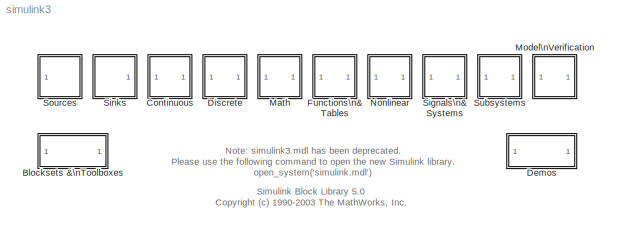
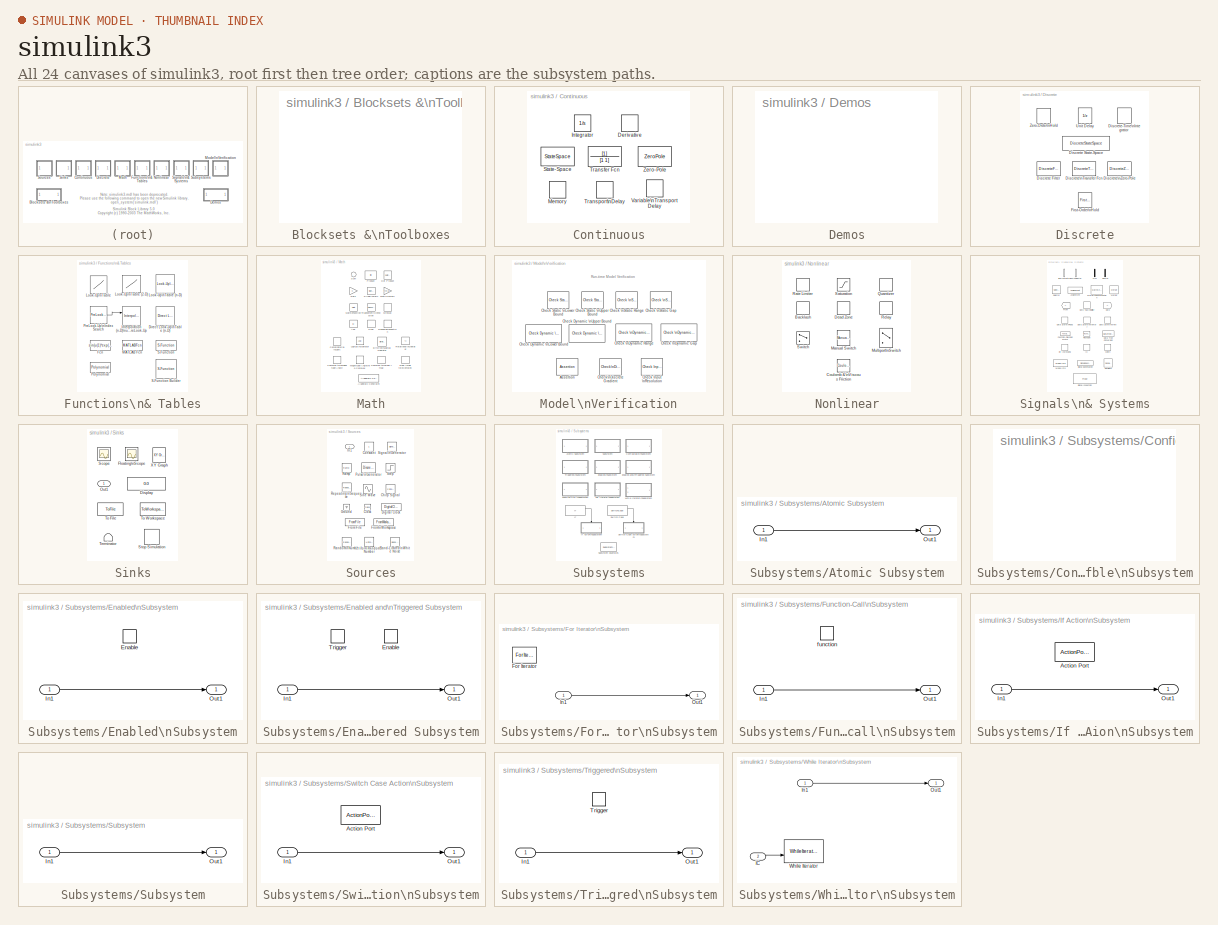
[diagram: thumbnail index - all 24 canvases of the model, root first then tree order]
MODEL simulink3
KIND library
CONFIG PostLoadFcn = setsysloc(bdroot)
BLOCK [SubSystem] Blocksets &\nToolboxes
  MaskDisplay = image(imread('blocksets.bmp','bmp'))
  MaskIconFrame = on
  MaskIconOpaque = on
  MaskIconRotate = none
  MaskIconUnits = autoscale
  OpenFcn = findblib
  Ports = []
  TreatAsAtomicUnit = off
BLOCK [SubSystem] Continuous
  MaskDisplay = image(imread('continuous.bmp','bmp'))
  MaskIconFrame = on
  MaskIconOpaque = on
  MaskIconRotate = none
  MaskIconUnits = autoscale
  Ports = []
  TreatAsAtomicUnit = off
BLOCK [Derivative] Continuous/Derivative
BLOCK [Integrator] Continuous/Integrator
  Ports = [1, 1]
BLOCK [Memory] Continuous/Memory
BLOCK [StateSpace] Continuous/State-Space
BLOCK [TransferFcn] Continuous/Transfer Fcn
  Denominator = [1 1]
BLOCK [TransportDelay] Continuous/Transport\nDelay
BLOCK [VariableTransportDelay] Continuous/Variable\nTransport Delay
  MaximumDelay = 10
BLOCK [ZeroPole] Continuous/Zero-Pole
  Poles = [0 -1]
BLOCK [SubSystem] Demos
  MaskDisplay = image(imread('demos.bmp','bmp'))
  MaskIconFrame = on
  MaskIconOpaque = on
  MaskIconRotate = none
  MaskIconUnits = autoscale
  OpenFcn = demo simulink
  Ports = []
  TreatAsAtomicUnit = off
BLOCK [SubSystem] Discrete
  MaskDisplay = image(imread('discrete.bmp','bmp'))
  MaskIconFrame = on
  MaskIconOpaque = on
  MaskIconRotate = none
  MaskIconUnits = autoscale
  Ports = []
  TreatAsAtomicUnit = off
BLOCK [DiscreteFilter] Discrete/Discrete Filter
  Denominator = [1 0.5]
BLOCK [DiscreteStateSpace] Discrete/Discrete State-Space
BLOCK [DiscreteIntegrator] Discrete/Discrete-Time\nIntegrator
  ExternalReset = none
  InitialConditionSource = internal
  IntegratorMethod = Forward Euler
  Ports = [1, 1]
BLOCK [DiscreteTransferFcn] Discrete/Discrete\nTransfer Fcn
BLOCK [DiscreteZeroPole] Discrete/Discrete\nZero-Pole
  Gain = 1
  Poles = [0 0.5]
BLOCK [Reference] Discrete/First-Order\nHold  REF=simulink/Discrete/First-Order\nHold
  Ports = [1, 1]
  SourceBlock = simulink/Discrete/First-Order\nHold
  SourceType = First-Order Hold
  Ts = 1
BLOCK [UnitDelay] Discrete/Unit Delay
BLOCK [ZeroOrderHold] Discrete/Zero-Order\nHold
BLOCK [SubSystem] Functions\n& Tables
  MaskDisplay = image(imread('functions.bmp','bmp'))
  MaskIconFrame = on
  MaskIconOpaque = on
  MaskIconRotate = none
  MaskIconUnits = autoscale
  MaskSelfModifiable = on
  Ports = []
  TreatAsAtomicUnit = off
BLOCK [Reference] Functions\n& Tables/Direct Look-Up\nTable (n-D)  REF=simulink/Look-Up\nTables/Direct Look-Up\nTable (n-D)
  Ports = [2, 1]
  SourceBlock = simulink/Look-Up\nTables/Direct Look-Up\nTable (n-D)
  SourceType = LookupNDDirect
  clipFlag = Warning
  explicitNumDims = 1
  maskTabDims = 2
  mxTable = [4 5 6;16 19 20;10 18 23]
  outDims = Element
  tabIsInput = off
BLOCK [Fcn] Functions\n& Tables/Fcn
  Expr = sin(u(1)*exp(2.3*(-u(2))))
BLOCK [Reference] Functions\n& Tables/Interpolation (n-D)\nusing PreLook-Up  REF=simulink/Look-Up\nTables/Interpolation (n-D)\nusing PreLook-Up
  Ports = [2, 1]
  SourceBlock = simulink/Look-Up\nTables/Interpolation (n-D)\nusing PreLook-Up
  SourceType = LookupNDInterpIdx
  explicitNumDims = 2
  extrapMethod = Linear
  interpMethod = Linear
  numDimsPopupSelect = 2
  rangeErrorMode = None
  table = sqrt([1:10]'*[1:10])
BLOCK [Lookup] Functions\n& Tables/Look-Up\nTable
  InputValues = [-5:5]
  OutputValues = tanh([-5:5])
BLOCK [Lookup2D] Functions\n& Tables/Look-Up\nTable (2-D)
  ColumnIndex = [1:3]
  OutputValues = [4 5 6;16 19 20;10 18 23]
  RowIndex = [1:3]
BLOCK [Reference] Functions\n& Tables/Look-Up\nTable (n-D)  REF=simulink/Look-Up\nTables/Look-Up\nTable (n-D)
  Ports = [2, 1]
  SourceBlock = simulink/Look-Up\nTables/Look-Up\nTable (n-D)
  SourceType = LookupNDInterp
  bp1 = [10,22,31]
  bp2 = [10,22,31]
  bp3 = [1:3]
  bp4 = [1:3]
  bpcell = { [1:3], [1:3] }
  cacheBpFlag = off
  explicitNumDims = 2
  extrapMethod = Linear
  interpMethod = Linear
  numDimsPopupSelect = 2
  rangeErrorMode = None
  searchMode = Binary Search
  tableData = [4 5 6;16 19 20;10 18 23]
  vectorInputFlag = off
BLOCK [MATLABFcn] Functions\n& Tables/MATLAB Fcn
BLOCK [Reference] Functions\n& Tables/Polynomial  REF=simulink/Math\nOperations/Polynomial
  Ports = [1, 1]
  SourceBlock = simulink/Math\nOperations/Polynomial
  SourceType = Polyval
  coefs = [ +2.081618890e-019, -1.441693666e-014, +4.719686976e-010, -8.536869453e-006, +1.621573104e-001, -8.087801117e+001 ]
BLOCK [Reference] Functions\n& Tables/PreLook-Up\nIndex Search  REF=simulink/Look-Up\nTables/PreLook-Up\nIndex Search
  Ports = [1, 1]
  SourceBlock = simulink/Look-Up\nTables/PreLook-Up\nIndex Search
  SourceType = LookupIdxSearch
  bpData = [10:10:100]
  cacheBpFlag = off
  extrapMode = Linear Extrapolation
  outputFlag = off
  rangeErrorMode = None
  searchMode = Binary Search
BLOCK [S-Function] Functions\n& Tables/S-Function
  Ports = [1, 1]
BLOCK [S-Function] Functions\n& Tables/S-Function Builder
  CopyFcn = set_param(gcb,'LinkStatus','none')
  MaskDisplay = plot(val(:,1),val(:,2))\ndisp(sys)
  MaskIconFrame = on
  MaskIconOpaque = on
  MaskIconRotate = none
  MaskIconUnits = normalized
  MaskInitialization = val = [[.9  0.75 0.75 1 1 .9 .9 1]',[1 1 0.75 0.75 .9 .9 1 .9]'];\nsys = get_param(gcb,'FunctionName');
  MaskType = S-Function Builder
  OpenFcn = sfunctionwizard(gcbh)
  Ports = [1, 1]
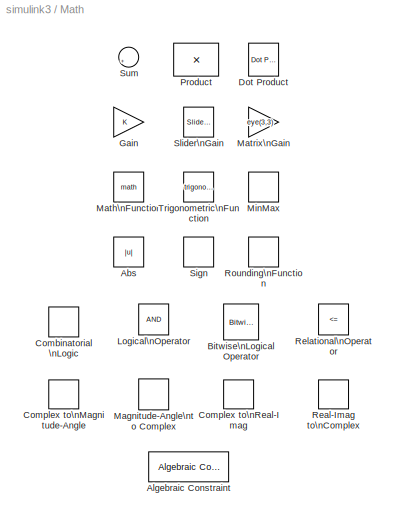
BLOCK [SubSystem] Math
  MaskDisplay = image(imread('math.bmp','bmp'))
  MaskIconFrame = on
  MaskIconOpaque = on
  MaskIconRotate = none
  MaskIconUnits = autoscale
  MaskSelfModifiable = on
  Ports = []
  TreatAsAtomicUnit = off
BLOCK [Abs] Math/Abs
BLOCK [Reference] Math/Algebraic Constraint  REF=simulink/Math\nOperations/Algebraic Constraint
  Ports = [1, 1]
  SourceBlock = simulink/Math\nOperations/Algebraic Constraint
  SourceType = Algebraic Constraint
  z0 = 0
BLOCK [Reference] Math/Bitwise\nLogical Operator  REF=simulink/Logic and Bit\nOperations/Bitwise\nLogical Operator
  Operand2 = 'FFFF'
  Operator = AND
  Ports = [1, 1]
  SourceBlock = simulink/Logic and Bit\nOperations/Bitwise\nLogical Operator
  SourceType = BitwiseOperator
BLOCK [CombinatorialLogic] Math/Combinatorial \nLogic
BLOCK [ComplexToMagnitudeAngle] Math/Complex to\nMagnitude-Angle
  Output = Magnitude and angle
  Ports = [1, 2]
BLOCK [ComplexToRealImag] Math/Complex to\nReal-Imag
  Output = Real and imag
  Ports = [1, 2]
BLOCK [Reference] Math/Dot Product  REF=simulink/Math\nOperations/Dot Product
  DoSatur = off
  InputSameDT = off
  LockScale = off
  OutDataType = sfix(16)
  OutScaling = 2^-10
  OutputDataTypeScalingMode = Inherit via internal rule
  Ports = [2, 1]
  RndMeth = Floor
  SourceBlock = simulink/Math\nOperations/Dot Product
  SourceType = Dot Product
BLOCK [Gain] Math/Gain
BLOCK [Logic] Math/Logical\nOperator
  Ports = [2, 1]
BLOCK [MagnitudeAngleToComplex] Math/Magnitude-Angle\nto Complex
  Input = Magnitude and angle
  Ports = [2, 1]
BLOCK [Math] Math/Math\nFunction
  Ports = [1, 1]
BLOCK [Gain] Math/Matrix\nGain
  Gain = eye(3,3)
  Multiplication = Matrix(K*u)
BLOCK [MinMax] Math/MinMax
  Function = min
  Ports = [1, 1]
BLOCK [Product] Math/Product
  Ports = [2, 1]
  RndMeth = Floor
BLOCK [RealImagToComplex] Math/Real-Imag to\nComplex
  Input = Real and imag
  Ports = [2, 1]
BLOCK [RelationalOperator] Math/Relational\nOperator
  Operator = <=
BLOCK [Rounding] Math/Rounding\nFunction
BLOCK [Signum] Math/Sign
BLOCK [Reference] Math/Slider\nGain  REF=simulink/Math\nOperations/Slider\nGain
  Ports = [1, 1]
  SourceBlock = simulink/Math\nOperations/Slider\nGain
  SourceType = Slider Gain
  gain = 1
  high = 2
  low = 0
BLOCK [Sum] Math/Sum
  CopyFcn = set_param(gcbh,'ShowName','off','CopyFcn','')
  IconShape = round
  Inputs = |++
  Ports = [2, 1]
BLOCK [Trigonometry] Math/Trigonometric\nFunction
  Ports = [1, 1]
BLOCK [SubSystem] Model\nVerification
  MaskDisplay = image(imread('assertion.bmp','bmp'))
  MaskIconFrame = on
  MaskIconOpaque = on
  MaskIconRotate = none
  MaskIconUnits = autoscale
  Ports = []
  TreatAsAtomicUnit = off
BLOCK [Assertion] Model\nVerification/Assertion
BLOCK [Reference] Model\nVerification/Check Dynamic \nLower Bound  REF=simulink/Model\nVerification/Check Dynamic \nLower Bound
  Description = min < sig
  Enabled = on
  Ports = [2]
  SourceBlock = simulink/Model\nVerification/Check Dynamic \nLower Bound
  SourceType = Checks_DMin
  export = off
  icon = graphic
  stopWhenAssertionFail = on
BLOCK [Reference] Model\nVerification/Check Dynamic \nUpper Bound  REF=simulink/Model\nVerification/Check Dynamic \nUpper Bound
  Description = sig < max
  Ports = [2]
  SourceBlock = simulink/Model\nVerification/Check Dynamic \nUpper Bound
  SourceType = Checks_DMax
  enabled = on
  export = off
  icon = graphic
  stopWhenAssertionFail = on
BLOCK [Reference] Model\nVerification/Check Input \nResolution  REF=simulink/Model\nVerification/Check Input \nResolution
  Description = -Inf < u < +Inf
  Ports = [1]
  SourceBlock = simulink/Model\nVerification/Check Input \nResolution
  SourceType = Checks_Resolution
  enabled = on
  export = off
  resolution = 1
  stopWhenAssertionFail = on
BLOCK [Reference] Model\nVerification/Check Static \nLower Bound  REF=simulink/Model\nVerification/Check Static \nLower Bound
  Description = 0 <= u
  Ports = [1]
  SourceBlock = simulink/Model\nVerification/Check Static \nLower Bound
  SourceType = Checks_SMin
  enabled = on
  export = off
  icon = graphic
  min = 0
  min_included = on
  stopWhenAssertionFail = on
BLOCK [Reference] Model\nVerification/Check Static \nUpper Bound  REF=simulink/Model\nVerification/Check Static \nUpper Bound
  Description = u <= 0
  Ports = [1]
  SourceBlock = simulink/Model\nVerification/Check Static \nUpper Bound
  SourceType = Checks_SMax
  enabled = on
  export = off
  icon = graphic
  max = 0
  max_included = on
  stopWhenAssertionFail = on
BLOCK [Reference] Model\nVerification/Check \nDynamic Gap  REF=simulink/Model\nVerification/Check \nDynamic Gap
  Description = sig < min || max < sig
  Ports = [3]
  SourceBlock = simulink/Model\nVerification/Check \nDynamic Gap
  SourceType = Checks_DGap
  enabled = on
  export = off
  icon = graphic
  stopWhenAssertionFail = on
BLOCK [Reference] Model\nVerification/Check \nDynamic Range  REF=simulink/Model\nVerification/Check \nDynamic Range
  Description = min < sig < max
  Ports = [3]
  SourceBlock = simulink/Model\nVerification/Check \nDynamic Range
  SourceType = Checks_DRange
  enabled = on
  export = off
  icon = graphic
  stopWhenAssertionFail = on
BLOCK [Reference] Model\nVerification/Check \nStatic Gap  REF=simulink/Model\nVerification/Check \nStatic Gap
  Description = u <= 0 || 100 <= u
  Ports = [1]
  SourceBlock = simulink/Model\nVerification/Check \nStatic Gap
  SourceType = Checks_SGap
  enabled = on
  export = off
  icon = graphic
  max = 100
  max_included = on
  min = 0
  min_included = on
  stopWhenAssertionFail = on
BLOCK [Reference] Model\nVerification/Check \nStatic Range  REF=simulink/Model\nVerification/Check \nStatic Range
  Description = 0 <= u <= 100
  Ports = [1]
  SourceBlock = simulink/Model\nVerification/Check \nStatic Range
  SourceType = Checks_SRange
  enabled = on
  export = off
  icon = graphic
  max = 100
  max_included = on
  min = 0
  min_included = on
  stopWhenAssertionFail = on
BLOCK [Reference] Model\nVerification/Check\nDiscrete Gradient  REF=simulink/Model\nVerification/Check\nDiscrete Gradient
  Description = | du / dt | < 1
  Ports = [1]
  SourceBlock = simulink/Model\nVerification/Check\nDiscrete Gradient
  SourceType = Checks_Gradient
  enabled = on
  export = off
  gradient = 1
  icon = graphic
  stopWhenAssertionFail = on
BLOCK [SubSystem] Nonlinear
  MaskDisplay = image(imread('nonlinear.bmp','bmp'))
  MaskIconFrame = on
  MaskIconOpaque = on
  MaskIconRotate = none
  MaskIconUnits = autoscale
  MaskSelfModifiable = on
  Ports = []
  TreatAsAtomicUnit = off
BLOCK [Backlash] Nonlinear/Backlash
BLOCK [Reference] Nonlinear/Coulomb &\nViscous Friction  REF=simulink/Discontinuities/Coulomb &\nViscous Friction
  Ports = [1, 1]
  SourceBlock = simulink/Discontinuities/Coulomb &\nViscous Friction
  SourceType = Coulombic and Viscous Friction
  gain = 1
  offset = [1 3 2 0]
BLOCK [DeadZone] Nonlinear/Dead Zone
BLOCK [Reference] Nonlinear/Manual Switch  REF=simulink/Signal\nRouting/Manual Switch
  Ports = [2, 1]
  SourceBlock = simulink/Signal\nRouting/Manual Switch
  SourceType = Manual Switch
  action = 0
  sw = 1
BLOCK [MultiPortSwitch] Nonlinear/Multiport\nSwitch
  Inputs = 3
  Ports = [4, 1]
  SaturateOnIntegerOverflow = off
BLOCK [Quantizer] Nonlinear/Quantizer
BLOCK [RateLimiter] Nonlinear/Rate Limiter
BLOCK [Relay] Nonlinear/Relay
BLOCK [Saturate] Nonlinear/Saturation
BLOCK [Switch] Nonlinear/Switch
  SaturateOnIntegerOverflow = off
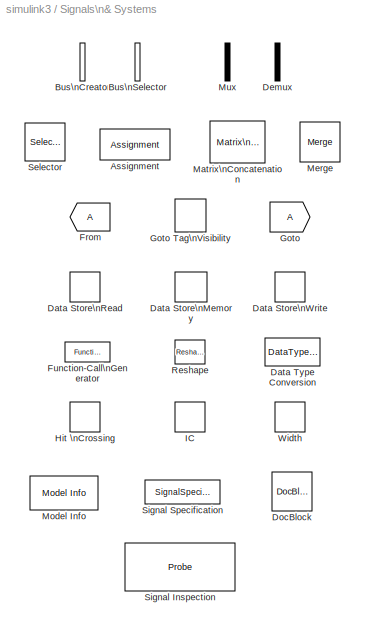
BLOCK [SubSystem] Signals\n& Systems
  MaskDisplay = image(imread('signals.bmp','bmp'))
  MaskIconFrame = on
  MaskIconOpaque = on
  MaskIconRotate = none
  MaskIconUnits = autoscale
  MaskSelfModifiable = on
  Ports = []
  TreatAsAtomicUnit = on
BLOCK [Assignment] Signals\n& Systems/Assignment
  Ports = [2, 1]
BLOCK [BusCreator] Signals\n& Systems/Bus\nCreator
  CopyFcn = set_param(gcbh,'ShowName','off','CopyFcn','')
  DisplayOption = bar
  Inputs = 2
  Ports = [2, 1]
BLOCK [BusSelector] Signals\n& Systems/Bus\nSelector
  CopyFcn = set_param(gcbh,'ShowName','off','CopyFcn','')
  OutputSignals = signal1,signal2
  Ports = [1, 2]
BLOCK [DataStoreMemory] Signals\n& Systems/Data Store\nMemory
  DataStoreName = A
  InitialValue = 0
  RTWStateStorageClass = Auto
  ShowAdditionalParam = off
  VectorParams1D = on
BLOCK [DataStoreRead] Signals\n& Systems/Data Store\nRead
  DataStoreName = A
  SampleTime = 0
BLOCK [DataStoreWrite] Signals\n& Systems/Data Store\nWrite
  DataStoreName = A
  SampleTime = -1
BLOCK [DataTypeConversion] Signals\n& Systems/Data Type Conversion
BLOCK [Demux] Signals\n& Systems/Demux
  CopyFcn = set_param(gcbh,'ShowName','off','CopyFcn','')
  DisplayOption = bar
  Outputs = 2
  Ports = [1, 2]
BLOCK [Reference] Signals\n& Systems/DocBlock  REF=simulink/Model-Wide\nUtilities/DocBlock
  DocumentType = Text
  Ports = []
  ShowPortLabels = on
  SourceBlock = simulink/Model-Wide\nUtilities/DocBlock
  SourceType = DocBlock
BLOCK [From] Signals\n& Systems/From
  GotoTag = A
BLOCK [Reference] Signals\n& Systems/Function-Call\nGenerator  REF=simulink/Ports &\nSubsystems/Function-Call\nGenerator
  Ports = [0, 1]
  SourceBlock = simulink/Ports &\nSubsystems/Function-Call\nGenerator
  SourceType = Function-Call Generator
  numberOfIterations = 1
  sample_time = 1
BLOCK [Goto] Signals\n& Systems/Goto
  GotoTag = A
  TagVisibility = local
BLOCK [GotoTagVisibility] Signals\n& Systems/Goto Tag\nVisibility
BLOCK [HitCross] Signals\n& Systems/Hit \nCrossing
  HitCrossingDirection = either
  Ports = [1, 1]
BLOCK [InitialCondition] Signals\n& Systems/IC
BLOCK [Reference] Signals\n& Systems/Matrix\nConcatenation  REF=simulink/Math\nOperations/Matrix\nConcatenation
  Ports = [2, 1]
  SourceBlock = simulink/Math\nOperations/Matrix\nConcatenation
  SourceType = Matrix Concatenation
  catMethod = Horizontal
  numInports = 2
BLOCK [Merge] Signals\n& Systems/Merge
  Ports = [2, 1]
BLOCK [Reference] Signals\n& Systems/Model Info  REF=simulink/Model-Wide\nUtilities/Model Info
  BlockCM = none
  DisplayStringWithTags = Model Info
  Frame = on
  HorizontalTextAlignment = Center
  InitialBlockCM = none
  LeftAlignmentValue = 0.5
  MaskDisplayString = Model Info
  Ports = []
  ShowPortLabels = on
  SourceBlock = simulink/Model-Wide\nUtilities/Model Info
  SourceBlockDiagram = simulink3
  SourceType = CMBlock
  TagMaxNumber = 20
BLOCK [Mux] Signals\n& Systems/Mux
  CopyFcn = set_param(gcbh,'ShowName','off','CopyFcn','')
  DisplayOption = bar
  Inputs = 2
  Ports = [2, 1]
BLOCK [Reference] Signals\n& Systems/Reshape  REF=simulink/Math\nOperations/Reshape
  OutputDimensionality = 1-D array
  OutputDimensions = [1,1]
  Ports = [1, 1]
  SourceBlock = simulink/Math\nOperations/Reshape
  SourceType = Reshape
BLOCK [Selector] Signals\n& Systems/Selector
  Elements = [1 3]
  InputPortWidth = 3
  Ports = [1, 1]
BLOCK [Probe] Signals\n& Systems/Signal Inspection
  Ports = [1, 4]
  ProbeSignalDimensions = on
BLOCK [SignalSpecification] Signals\n& Systems/Signal Specification
BLOCK [Width] Signals\n& Systems/Width
BLOCK [SubSystem] Sinks
  MaskDisplay = image(imread('sinks.bmp','bmp'))\n
  MaskIconFrame = on
  MaskIconOpaque = on
  MaskIconRotate = none
  MaskIconUnits = autoscale
  MaskSelfModifiable = on
  Ports = [0, 1]
  TreatAsAtomicUnit = off
BLOCK [Display] Sinks/Display
  Decimation = 1
  Ports = [1]
BLOCK [Scope] Sinks/Floating\nScope
  DataFormat = StructureWithTime
  Floating = on
  NumInputPorts = 1
  Ports = []
  SaveName = ScopeData1
BLOCK [Outport] Sinks/Out1
  IconDisplay = Port number
BLOCK [Scope] Sinks/Scope
  DataFormat = StructureWithTime
  NumInputPorts = 1
  Ports = [1]
BLOCK [Stop] Sinks/Stop Simulation
BLOCK [Terminator] Sinks/Terminator
BLOCK [ToFile] Sinks/To File
BLOCK [ToWorkspace] Sinks/To Workspace
  MaxDataPoints = inf
  SampleTime = -1
  SaveFormat = Structure
  VariableName = simout
BLOCK [Reference] Sinks/XY Graph  REF=simulink/Sinks/XY Graph
  Ports = [2]
  SourceBlock = simulink/Sinks/XY Graph
  SourceType = XY scope.
  st = -1
  xmax = 1
  xmin = -1
  ymax = 1
  ymin = -1
BLOCK [SubSystem] Sources
  MaskDisplay = image(imread('sources.bmp','bmp'))
  MaskIconFrame = on
  MaskIconOpaque = on
  MaskIconRotate = none
  MaskIconUnits = autoscale
  Ports = [1]
  TreatAsAtomicUnit = off
BLOCK [Reference] Sources/Band-Limited\nWhite Noise  REF=simulink/Sources/Band-Limited\nWhite Noise
  Cov = [0.1]
  Ports = [0, 1]
  SourceBlock = simulink/Sources/Band-Limited\nWhite Noise
  SourceType = Continuous White Noise.
  Ts = 0.1
  VectorParams1D = on
  seed = [23341]
BLOCK [Reference] Sources/Chirp Signal  REF=simulink/Sources/Chirp Signal
  Ports = [0, 1]
  SourceBlock = simulink/Sources/Chirp Signal
  SourceType = chirp
  T = 100
  VectorParams1D = on
  f1 = 0.1
  f2 = 1
BLOCK [Clock] Sources/Clock
  Decimation = 10
BLOCK [Constant] Sources/Constant
BLOCK [DigitalClock] Sources/Digital Clock
BLOCK [FromFile] Sources/From File
  SampleTime = 0
BLOCK [FromWorkspace] Sources/From\nWorkspace
  SampleTime = 0
  VariableName = simin
BLOCK [Ground] Sources/Ground
BLOCK [Inport] Sources/In1
  IconDisplay = Port number
BLOCK [DiscretePulseGenerator] Sources/Pulse\nGenerator
  Ports = [0, 1]
  PulseType = Time based
  PulseWidth = 50
BLOCK [Reference] Sources/Ramp  REF=simulink/Sources/Ramp
  Ports = [0, 1]
  SourceBlock = simulink/Sources/Ramp
  SourceType = Ramp
  VectorParams1D = on
  X0 = 0
  slope = 1
  start = 0
BLOCK [RandomNumber] Sources/Random\nNumber
  SampleTime = 0
BLOCK [Reference] Sources/Repeating\nSequence  REF=simulink/Sources/Repeating\nSequence
  Ports = [0, 1]
  SourceBlock = simulink/Sources/Repeating\nSequence
  SourceType = Repeating table
  rep_seq_t = [0 2]
  rep_seq_y = [0 2]
BLOCK [SignalGenerator] Sources/Signal\nGenerator
  Ports = [0, 1]
BLOCK [Sin] Sources/Sine Wave
  Ports = [0, 1]
  SampleTime = 0
  SineType = Time based
BLOCK [Step] Sources/Step
  SampleTime = 0
BLOCK [UniformRandomNumber] Sources/Uniform Random\nNumber
  SampleTime = 0
BLOCK [SubSystem] Subsystems
  MaskDisplay = image(imread('subsystems.bmp','bmp'))
  MaskIconFrame = on
  MaskIconOpaque = on
  MaskIconRotate = none
  MaskIconUnits = autoscale
  MaskSelfModifiable = on
  Ports = []
  TreatAsAtomicUnit = on
BLOCK [SubSystem] Subsystems/Atomic Subsystem
  CopyFcn = set_param(gcb,'LinkStatus','none'); set_param(gcb,'Mask','off'); set_param(gcb,'MaskType',''); set_param(gcb,'MaskDescription',''); set_param(gcb,'OpenFcn',''); set_param(gcb,'CopyFcn','')
  MaskDescription = A subsystem block template containing an inport and outport block.
  MaskIconFrame = on
  MaskIconOpaque = on
  MaskIconRotate = none
  MaskIconUnits = autoscale
  MaskType = Atomic Subsystem
  OpenFcn = open_system(gcb,'force')
  Ports = [1, 1]
  TreatAsAtomicUnit = on
BLOCK [Inport] Subsystems/Atomic Subsystem/In1
  IconDisplay = Port number
BLOCK [Outport] Subsystems/Atomic Subsystem/Out1
  IconDisplay = Port number
BLOCK [SubSystem] Subsystems/Configurable\nSubsystem
  Ports = []
  TemplateBlock = master
  TreatAsAtomicUnit = off
BLOCK [SubSystem] Subsystems/Enabled and\nTriggered Subsystem
  CopyFcn = set_param(gcb,'LinkStatus','none'); set_param(gcb,'Mask','off'); set_param(gcb,'MaskType',''); set_param(gcb,'MaskDescription',''); set_param(gcb,'OpenFcn',''); set_param(gcb,'CopyFcn','')
  MaskDescription = A subsystem block template containing an enable port, trigger port, inport and outport block.
  MaskIconFrame = on
  MaskIconOpaque = on
  MaskIconRotate = none
  MaskIconUnits = autoscale
  MaskType = Enabled And Triggered Subsystem
  OpenFcn = open_system(gcb,'force')
  Ports = [1, 1, 1, 1]
  TreatAsAtomicUnit = on
BLOCK [EnablePort] Subsystems/Enabled and\nTriggered Subsystem/Enable
  Ports = []
BLOCK [Inport] Subsystems/Enabled and\nTriggered Subsystem/In1
  IconDisplay = Port number
BLOCK [Outport] Subsystems/Enabled and\nTriggered Subsystem/Out1
  IconDisplay = Port number
BLOCK [TriggerPort] Subsystems/Enabled and\nTriggered Subsystem/Trigger
  Ports = []
BLOCK [SubSystem] Subsystems/Enabled\nSubsystem
  CopyFcn = set_param(gcb,'LinkStatus','none'); set_param(gcb,'Mask','off'); set_param(gcb,'MaskType',''); set_param(gcb,'MaskDescription',''); set_param(gcb,'OpenFcn',''); set_param(gcb,'CopyFcn','')
  MaskDescription = A subsystem block template containing an enable port, inport and outport block.
  MaskIconFrame = on
  MaskIconOpaque = on
  MaskIconRotate = none
  MaskIconUnits = autoscale
  MaskType = Enabled Subsystem
  OpenFcn = open_system(gcb,'force')
  Ports = [1, 1, 1]
  TreatAsAtomicUnit = on
BLOCK [EnablePort] Subsystems/Enabled\nSubsystem/Enable
  Ports = []
BLOCK [Inport] Subsystems/Enabled\nSubsystem/In1
  IconDisplay = Port number
BLOCK [Outport] Subsystems/Enabled\nSubsystem/Out1
  IconDisplay = Port number
BLOCK [SubSystem] Subsystems/For Iterator\nSubsystem
  CopyFcn = set_param(gcb,'LinkStatus','none'); set_param(gcb,'Mask','off'); set_param(gcb,'MaskType',''); set_param(gcb,'MaskDescription',''); set_param(gcb,'OpenFcn',''); set_param(gcb,'CopyFcn','')
  MaskDescription = A subsystem block template containing a for iterator, inport and outport block.
  MaskIconFrame = on
  MaskIconOpaque = on
  MaskIconRotate = none
  MaskIconUnits = autoscale
  MaskType = For Iterator Subsystem
  OpenFcn = open_system(gcb,'force')
  Ports = [1, 1]
  TreatAsAtomicUnit = on
BLOCK [ForIterator] Subsystems/For Iterator\nSubsystem/For Iterator
  Ports = [0, 1]
BLOCK [Inport] Subsystems/For Iterator\nSubsystem/In1
  IconDisplay = Port number
BLOCK [Outport] Subsystems/For Iterator\nSubsystem/Out1
  IconDisplay = Port number
BLOCK [SubSystem] Subsystems/Function-Call\nSubsystem
  CopyFcn = set_param(gcb,'LinkStatus','none'); set_param(gcb,'Mask','off'); set_param(gcb,'MaskType',''); set_param(gcb,'MaskDescription',''); set_param(gcb,'OpenFcn',''); set_param(gcb,'CopyFcn','')
  MaskDescription = A subsystem block template containing a function-call trigger port, inport and outport block.
  MaskIconFrame = on
  MaskIconOpaque = on
  MaskIconRotate = none
  MaskIconUnits = autoscale
  MaskType = Function-Call Subsystem
  OpenFcn = open_system(gcb,'force')
  Ports = [1, 1, 0, 1]
  TreatAsAtomicUnit = on
BLOCK [Inport] Subsystems/Function-Call\nSubsystem/In1
  IconDisplay = Port number
BLOCK [Outport] Subsystems/Function-Call\nSubsystem/Out1
  IconDisplay = Port number
BLOCK [TriggerPort] Subsystems/Function-Call\nSubsystem/function
  Ports = []
  TriggerType = function-call
BLOCK [If] Subsystems/If
  Ports = [1, 2]
BLOCK [SubSystem] Subsystems/If Action\nSubsystem
  CopyFcn = set_param(gcb,'LinkStatus','none'); set_param(gcb,'Mask','off'); set_param(gcb,'MaskType',''); set_param(gcb,'MaskDescription',''); set_param(gcb,'OpenFcn',''); set_param(gcb,'CopyFcn','')
  MaskDescription = A subsystem block template containing an action port, inport and outport block.
  MaskIconFrame = on
  MaskIconOpaque = on
  MaskIconRotate = none
  MaskIconUnits = autoscale
  MaskType = If Action Subsystem
  OpenFcn = open_system(gcb,'force')
  Ports = [1, 1, 0, 0, 0, 0, 0, 1]
  TreatAsAtomicUnit = on
BLOCK [ActionPort] Subsystems/If Action\nSubsystem/Action Port
  ActionType = then
BLOCK [Inport] Subsystems/If Action\nSubsystem/In1
  IconDisplay = Port number
BLOCK [Outport] Subsystems/If Action\nSubsystem/Out1
  IconDisplay = Port number
BLOCK [SubSystem] Subsystems/Subsystem
  CopyFcn = set_param(gcb,'LinkStatus','none'); set_param(gcb,'Mask','off'); set_param(gcb,'MaskType',''); set_param(gcb,'MaskDescription',''); set_param(gcb,'OpenFcn',''); set_param(gcb,'CopyFcn','')
  MaskDescription = A subsystem block template containing an inport and outport block.
  MaskIconFrame = on
  MaskIconOpaque = on
  MaskIconRotate = none
  MaskIconUnits = autoscale
  MaskType = Virtual Subsystem
  OpenFcn = open_system(gcb,'force')
  Ports = [1, 1]
  TreatAsAtomicUnit = off
BLOCK [Reference] Subsystems/Subsystem Examples  REF=simulink/Ports &\nSubsystems/Subsystem Examples
  Ports = []
  ShowPortLabels = on
  SourceBlock = simulink/Ports &\nSubsystems/Subsystem Examples
  SourceType = Subsystem Examples
BLOCK [Inport] Subsystems/Subsystem/In1
  IconDisplay = Port number
BLOCK [Outport] Subsystems/Subsystem/Out1
  IconDisplay = Port number
BLOCK [SwitchCase] Subsystems/Switch Case
  Ports = [1, 2]
BLOCK [SubSystem] Subsystems/Switch Case Action\nSubsystem
  CopyFcn = set_param(gcb,'LinkStatus','none'); set_param(gcb,'Mask','off'); set_param(gcb,'MaskType',''); set_param(gcb,'MaskDescription',''); set_param(gcb,'OpenFcn',''); set_param(gcb,'CopyFcn','')
  MaskDescription = A subsystem block template containing an action port, inport and outport block.
  MaskIconFrame = on
  MaskIconOpaque = on
  MaskIconRotate = none
  MaskIconUnits = autoscale
  MaskType = Switch Case Action Subsystem
  OpenFcn = open_system(gcb,'force')
  Ports = [1, 1, 0, 0, 0, 0, 0, 1]
  TreatAsAtomicUnit = on
BLOCK [ActionPort] Subsystems/Switch Case Action\nSubsystem/Action Port
  ActionType = case
BLOCK [Inport] Subsystems/Switch Case Action\nSubsystem/In1
  IconDisplay = Port number
BLOCK [Outport] Subsystems/Switch Case Action\nSubsystem/Out1
  IconDisplay = Port number
BLOCK [SubSystem] Subsystems/Triggered\nSubsystem
  CopyFcn = set_param(gcb,'LinkStatus','none'); set_param(gcb,'Mask','off'); set_param(gcb,'MaskType',''); set_param(gcb,'MaskDescription',''); set_param(gcb,'OpenFcn',''); set_param(gcb,'CopyFcn','')
  MaskDescription = A subsystem block template containing a trigger port, inport and outport block.
  MaskIconFrame = on
  MaskIconOpaque = on
  MaskIconRotate = none
  MaskIconUnits = autoscale
  MaskType = Triggered Subsystem
  OpenFcn = open_system(gcb,'force')
  Ports = [1, 1, 0, 1]
  TreatAsAtomicUnit = on
BLOCK [Inport] Subsystems/Triggered\nSubsystem/In1
  IconDisplay = Port number
BLOCK [Outport] Subsystems/Triggered\nSubsystem/Out1
  IconDisplay = Port number
BLOCK [TriggerPort] Subsystems/Triggered\nSubsystem/Trigger
  Ports = []
BLOCK [SubSystem] Subsystems/While Iterator\nSubsystem
  CopyFcn = set_param(gcb,'LinkStatus','none'); set_param(gcb,'Mask','off'); set_param(gcb,'MaskType',''); set_param(gcb,'MaskDescription',''); set_param(gcb,'OpenFcn',''); set_param(gcb,'CopyFcn','')
  MaskDescription = A subsystem block template containing a while iterator, inport and outport block.
  MaskIconFrame = on
  MaskIconOpaque = on
  MaskIconRotate = none
  MaskIconUnits = autoscale
  MaskType = While Iterator Subsystem
  OpenFcn = open_system(gcb,'force')
  Ports = [2, 1]
  TreatAsAtomicUnit = on
BLOCK [Inport] Subsystems/While Iterator\nSubsystem/IC
  IconDisplay = Port number
  Port = 2
BLOCK [Inport] Subsystems/While Iterator\nSubsystem/In1
  IconDisplay = Port number
BLOCK [Outport] Subsystems/While Iterator\nSubsystem/Out1
  IconDisplay = Port number
BLOCK [WhileIterator] Subsystems/While Iterator\nSubsystem/While Iterator
  Ports = [2]
ANNOTATION (root): Note: simulink3.mdl has been deprecated. \nPlease use the following command to open the new Simulink library. \nopen_system('simulink.mdl')
ANNOTATION (root): \nSimulink Block Library 5.0\nCopyright (c) 1990-2003 The MathWorks, Inc.
ANNOTATION Model\nVerification: Run-time Model Verification
LINE Functions\n& Tables/PreLook-Up\nIndex Search:1 -> Functions\n& Tables/Interpolation (n-D)\nusing PreLook-Up:1
LINE Subsystems/Atomic Subsystem/In1:1 -> Subsystems/Atomic Subsystem/Out1:1
LINE Subsystems/Enabled and\nTriggered Subsystem/In1:1 -> Subsystems/Enabled and\nTriggered Subsystem/Out1:1
LINE Subsystems/Enabled\nSubsystem/In1:1 -> Subsystems/Enabled\nSubsystem/Out1:1
LINE Subsystems/For Iterator\nSubsystem/In1:1 -> Subsystems/For Iterator\nSubsystem/Out1:1
LINE Subsystems/Function-Call\nSubsystem/In1:1 -> Subsystems/Function-Call\nSubsystem/Out1:1
LINE Subsystems/If Action\nSubsystem/In1:1 -> Subsystems/If Action\nSubsystem/Out1:1
LINE Subsystems/If:1 -> Subsystems/If Action\nSubsystem:ifaction
LINE Subsystems/Subsystem/In1:1 -> Subsystems/Subsystem/Out1:1
LINE Subsystems/Switch Case Action\nSubsystem/In1:1 -> Subsystems/Switch Case Action\nSubsystem/Out1:1
LINE Subsystems/Switch Case:1 -> Subsystems/Switch Case Action\nSubsystem:ifaction
LINE Subsystems/Triggered\nSubsystem/In1:1 -> Subsystems/Triggered\nSubsystem/Out1:1
LINE Subsystems/While Iterator\nSubsystem/IC:1 -> Subsystems/While Iterator\nSubsystem/While Iterator:2
LINE Subsystems/While Iterator\nSubsystem/In1:1 -> Subsystems/While Iterator\nSubsystem/Out1:1
